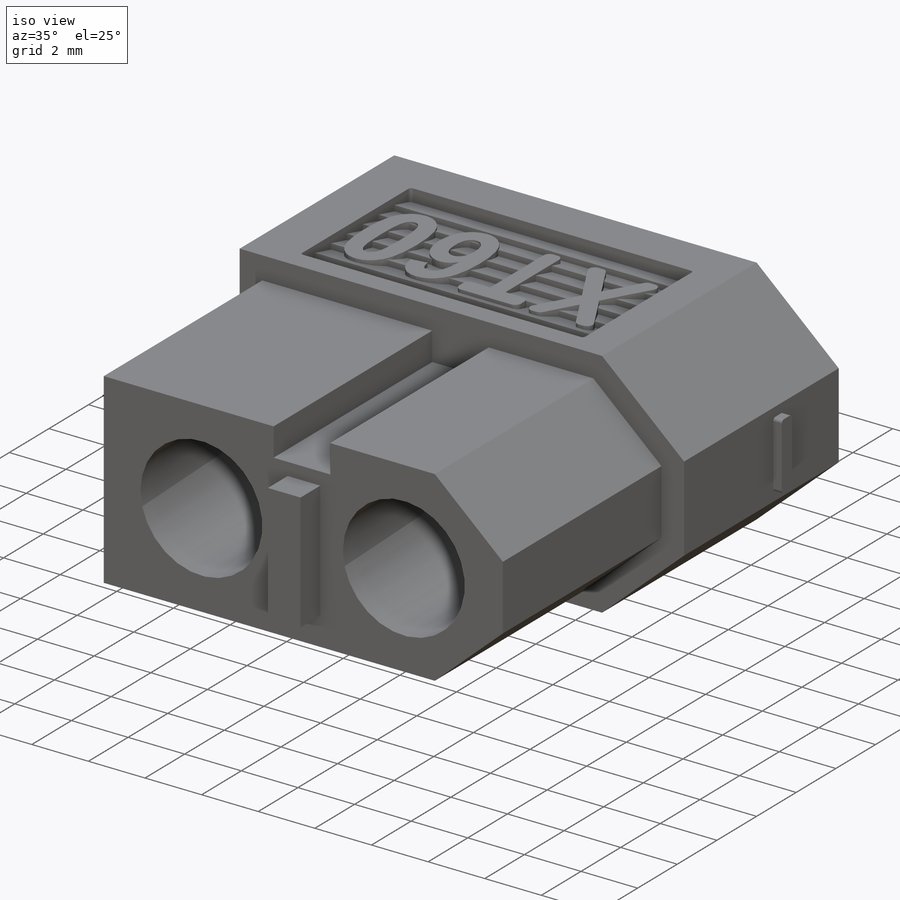
[diagram: iso view]
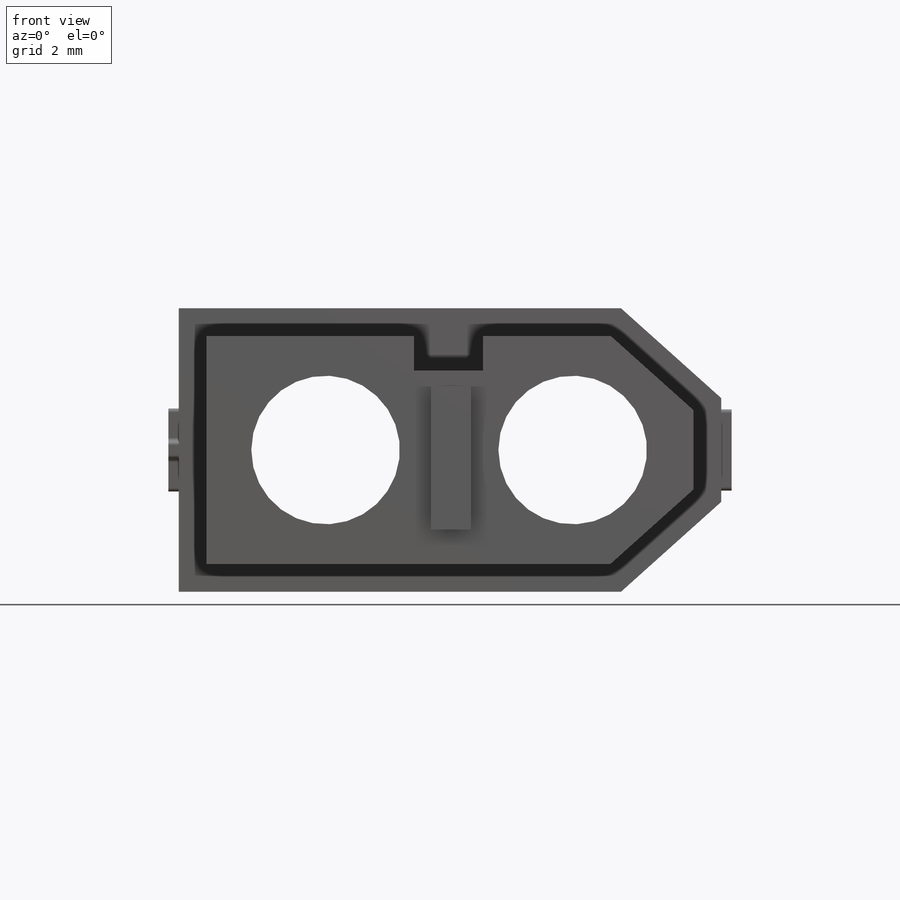
[diagram: front view]
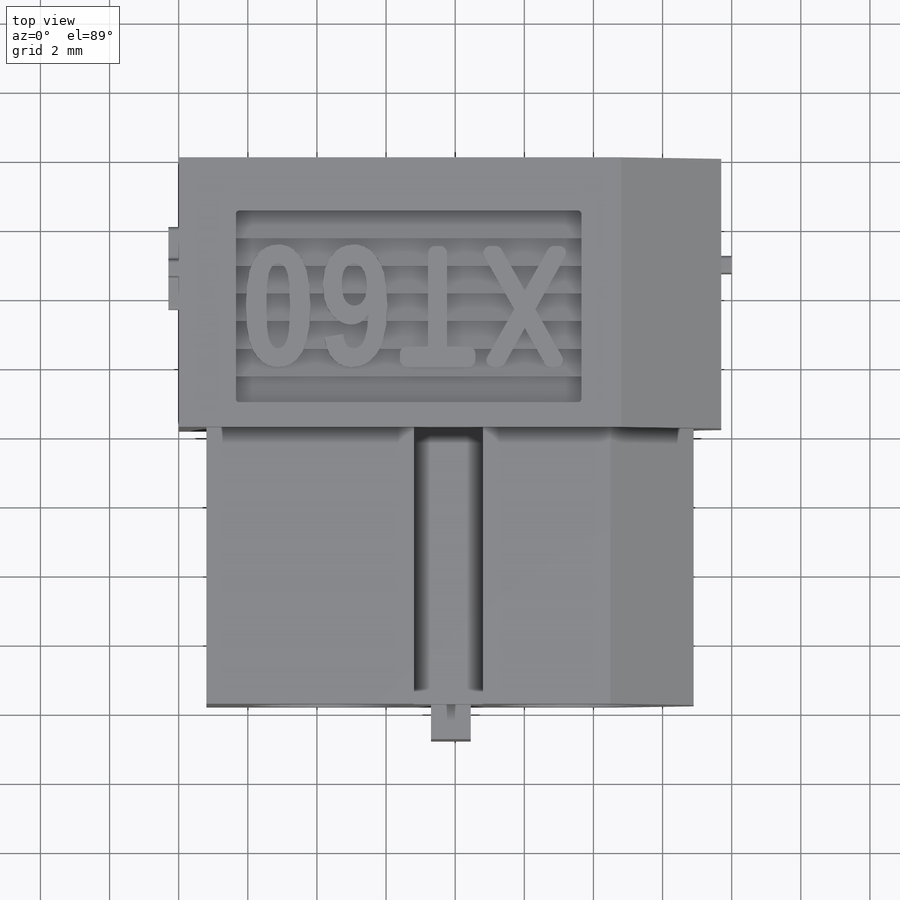
[diagram: top view]
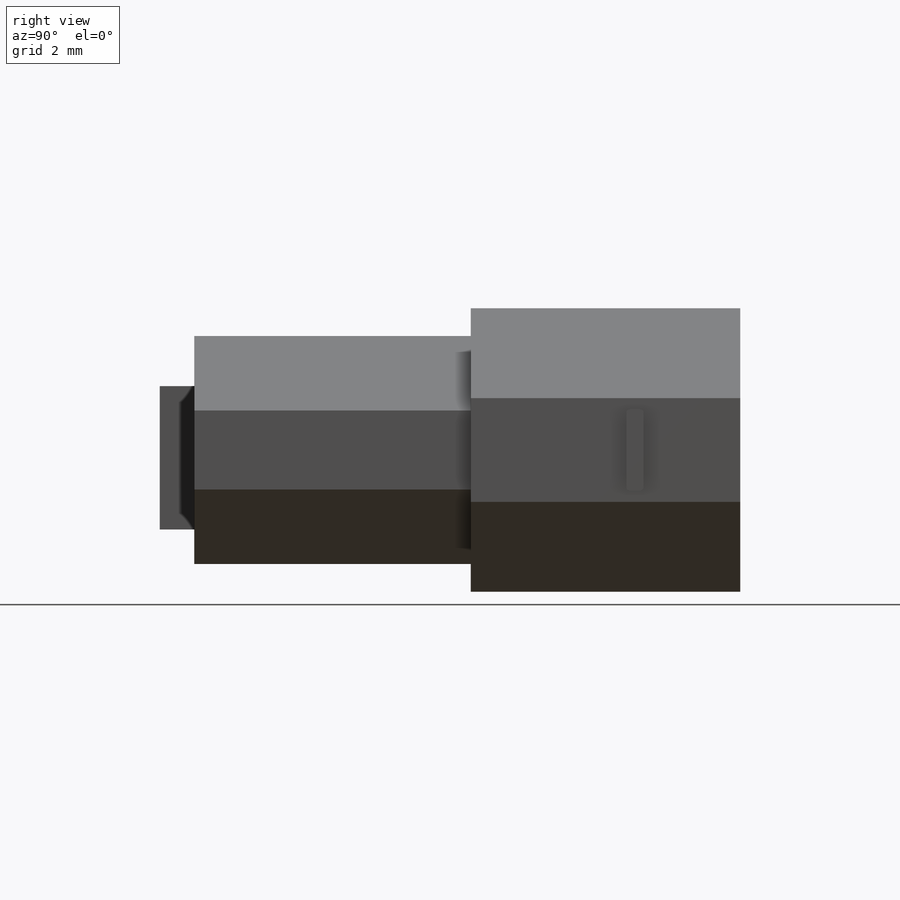
[diagram: right view]
SOLIDWORKS PART (.sldprt)
format: sldprt  version: not decoded by parser v0  size: 886,784 bytes
history: native  units: mm
features: sketch x11, extrude x7, plane x6, cut_extrude x4, material x1, mirror x1 (+9 scaffold rows collapsed)
feature tree (39):
  scaffold x9  (default folders/planes/origin — collapsed)
  material  "Náilon 101"
  plane  "Plano frontal"
  plane  "Plano superior"
  plane  "Plano direito"
  sketch  "Esboço1"  dims[D1=12.8mm D2=3.0mm D3=15.7mm D4=8.2mm]
  extrude  "Ressalto-extrusão1"  Depth=15.8mm
  sketch  "Esboço2"  dims[c1.D3=~0.793074mm c1.D4=~1.603175mm c2.D3=2.0mm c2.D4=6.0mm c2.D5=1.0mm c2.D1=0.0mm c2.D2=0.8mm]
  cut_extrude  "Corte-extrusão1"  Depth=8mm
  sketch  "Esboço5"  dims[c1.D1=6.0mm c1.D3=6.0mm c1.D4=6.0mm c1.D2=1.3mm c2.D3=4.25mm c2.D4=4.3mm c2.D2=4.3mm]
  cut_extrude  "Corte-extrusão3"  Depth=2mm
  sketch  "Esboço6"  dims[c1.D1=~2.714589mm c1.D2=3.4mm c1.D3=4.2mm c2.D2=3.6mm c2.D3=4.3mm c3.D2=3.4mm c3.D1=4.3mm c4.D2=4.3mm c4.D3=4.3mm c4.D1=6.0mm c5.D2=6.0mm c5.D4=4.3mm c6.D2=2.85mm c6.D3=4.25mm]
  cut_extrude  "Corte-extrusão4"  [1 undecoded]
  sketch  "Esboço7"  dims[c1.D4=0.1mm c1.D1=~1.133994mm c1.D2=~4.406378mm c2.D1=~0.323998mm c2.D2=~0.372598mm c3.D1=2.4mm c3.D2=0.5mm c3.D3=4.35mm]
  extrude  "Ressalto-extrusão3"  Depth=0.3mm
  sketch  "Esboço8"  dims[c1.D4=0.1mm c1.D1=~1.374846mm c1.D2=~0.553398mm c2.D1=2.35mm c2.D2=0.5mm c2.D3=3.3mm]
  extrude  "Ressalto-extrusão4"  Depth=0.3mm
  sketch  "Esboço9"  dims[c1.D1=~3.48819mm c1.D2=1.15mm c1.D3=1.75mm c1.D4=9.6mm c2.D3=10.0mm c2.D4=1.45mm c3.D3=10.0mm c3.D4=5.55mm]
  cut_extrude  "Corte-extrusão5"  Depth=0.75mm
  sketch  "Esboço10"  dims[c1.D1=0.3mm c1.D2=~0.212253mm c2.D2=45.0deg c2.D3=0.1mm c2.D4=0.15mm c3.D3=0.8mm c3.D2=0.5mm c3.D6=0.2mm c3.D1=0.8mm c4.D2=0.2mm c4.D3=0.3mm c4.D4=0.2mm c5.D4=~14.036243deg c6.D4=0.4mm c6.D5=~0.087397mm c7.D4=7.0]
  extrude  "Ressalto-extrusão7"  [1 undecoded]
  plane  "Plano1"
  mirror  "Espelhar1"
  plane  "Plano2"  Offset=0.5mm
  sketch  "Esboço11"  dims[c1.D13=0.15mm c1.D14=0.1mm c1.D15=2.0mm c1.D16=0.15mm c1.D17=0.05mm c1.D2=0.2mm c1.D4=0.2mm c1.D1=~0.957487mm c2.D2=~1.16216mm c2.D1=0.6mm c3.D2=0.85mm c3.D3=0.6mm c3.D4=0.6mm c3.D5=0.6mm c4.D5=80.0deg c4.D6=~0.947291mm c5.D6=135.0deg c6.D6=~0.970907mm c7.D6=135.0deg c8.D6=0.6mm c9.D6=90.0deg c10.D6=~2.440817mm c11.D6=80.0deg c11.D7=~2.789029mm c12.D7=80.0deg c12.D8=0.6mm c12.D9=0.6mm c12.D10=~0.408982mm c13.D10=80.0deg c14.D10=~0.408982mm c15.D10=60.0deg c15.D11=0.6mm c15.D9=0.6mm c15.D12=0.6mm c15.D13=~0.939711mm c16.D13=340.0deg c17.D13=~0.646623mm c17.D18=0.3mm c17.D2=~0.694593mm c17.D15=~0.588047mm]
  extrude  "Ressalto-extrusão8"  Depth=0.3mm
  plane  "Plano3"  Offset=0.5mm
  sketch  "Esboço12"  dims[D2=0.2mm D1=3.5mm]
  extrude  "Ressalto-extrusão9"  Depth=0.3mm
  sketch  "Esboço13"  dims[c1.D1=~0.505926mm c1.D2=~0.218508mm c2.D1=1.15mm c2.D2=4.15mm c2.D3=7.6mm c2.D4=1.0mm c2.D5=1.15mm]
  extrude  "Ressalto-extrusão10"  Depth=1mm
decode coverage: 20 of 23 modeling features carry decoded parameters
note: ~ marks probable driven/reference dimensions
note: 2 parameter values undecoded
note: suppression state not decoded; provenance and decode notes live in map.json
